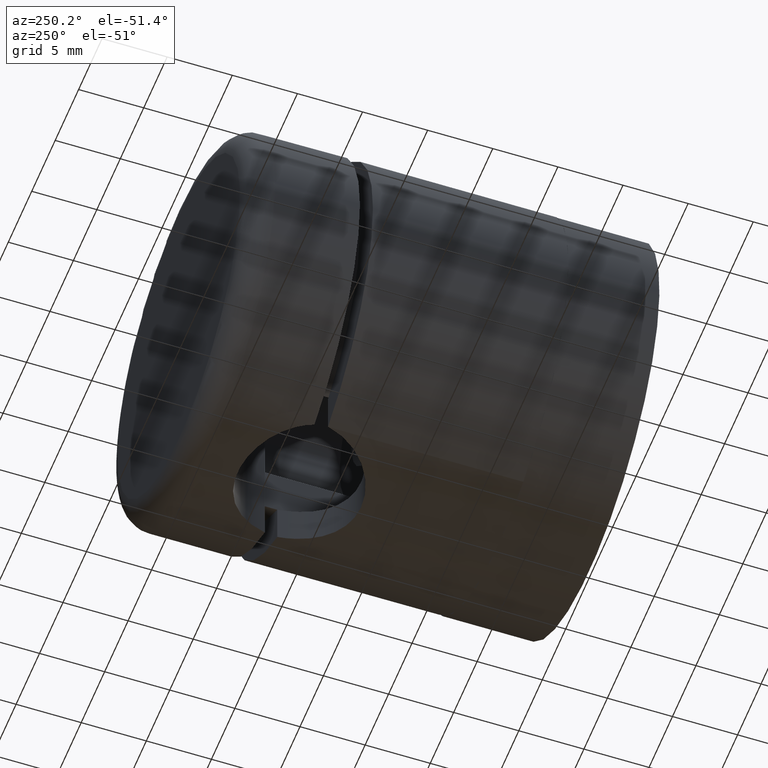
[diagram: clean part render]
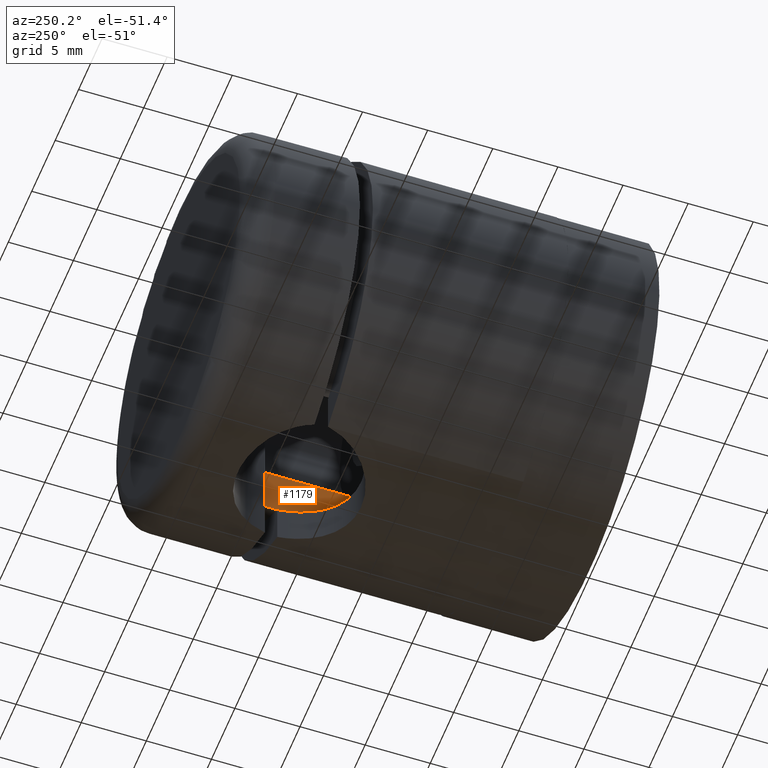
[diagram: same view with one face highlighted and labeled with its STEP entity id]
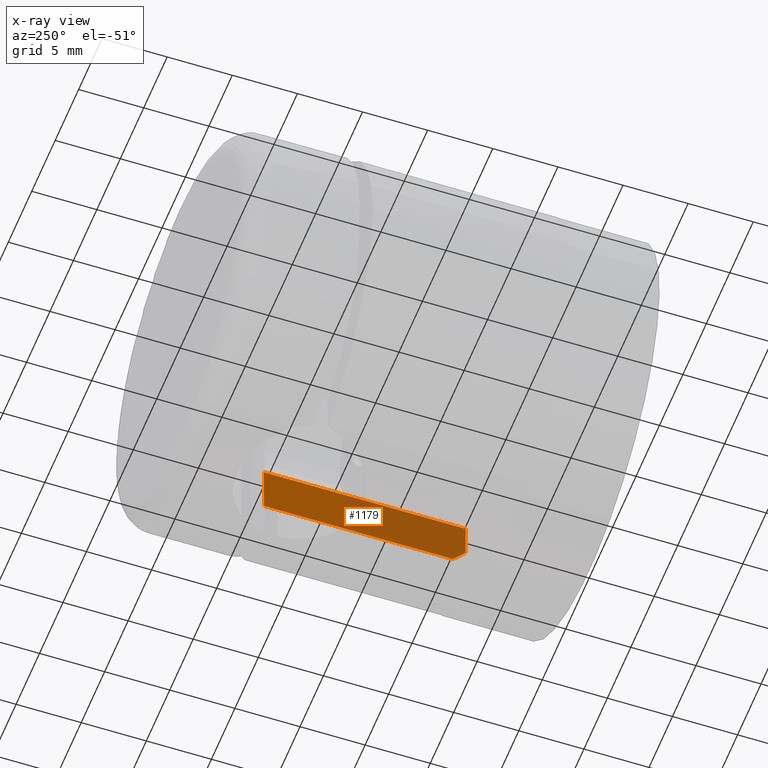
[diagram: x-ray of the same camera — body ghosted, the highlighted face saturated]
A machine part, auxiliary view. The second image highlights one B-rep face of the part: STEP entity #1179.
The next image is the same camera in x-ray: the body ghosted, the highlighted face saturated — about 52% of this face is hidden behind the body in this view.
In plain terms, the highlighted planar face has unit normal (1, 0, 0).
Its self-contained STEP definition (entity closure, byte-faithful):
#682 = CARTESIAN_POINT ( 'NONE',  ( 5.499999999999996400, 10.00000000000000200, -30.00000000000000400 ) ) ;
#982 = EDGE_CURVE ( 'NONE', #6676, #9332, #3696, .T. ) ;
#1179 = ADVANCED_FACE ( 'NONE', ( #15706 ), #5468, .F. ) ;
#1340 = EDGE_LOOP ( 'NONE', ( #8142, #9713, #11928, #14856, #15679 ) ) ;
#1542 = CARTESIAN_POINT ( 'NONE',  ( 5.500000000000000900, 24.50000000000000700, 10.72159036710506000 ) ) ;
#2350 = VERTEX_POINT ( 'NONE', #5229 ) ;
#2673 = VECTOR ( 'NONE', #12766, 1000.000000000000000 ) ;
#2738 = DIRECTION ( 'NONE',  ( 1.000000000000000000, 0.0000000000000000000, -1.156482317317871500E-016 ) ) ;
#2825 = CARTESIAN_POINT ( 'NONE',  ( 5.500000000000000900, 10.00000000000000200, 6.805328794408102200 ) ) ;
#2937 = AXIS2_PLACEMENT_3D ( 'NONE', #5366, #2738, #14667 ) ;
#3696 = LINE ( 'NONE', #10559, #9297 ) ;
#4410 = VERTEX_POINT ( 'NONE', #16306 ) ;
#4969 = CARTESIAN_POINT ( 'NONE',  ( 5.500000000000000900, 25.50000000000000400, 10.72159036710506000 ) ) ;
#5229 = CARTESIAN_POINT ( 'NONE',  ( 5.500000000000000900, 10.00000000000000000, 10.72159036710506000 ) ) ;
#5366 = CARTESIAN_POINT ( 'NONE',  ( 5.499999999999996400, -51.00000000000000000, -30.00000000000000400 ) ) ;
#5383 = EDGE_CURVE ( 'NONE', #4410, #6676, #9070, .T. ) ;
#5468 = PLANE ( 'NONE',  #2937 ) ;
#6173 = LINE ( 'NONE', #4969, #13659 ) ;
#6676 = VERTEX_POINT ( 'NONE', #9909 ) ;
#6688 = CARTESIAN_POINT ( 'NONE',  ( 5.500000000000000900, 24.50000000000000700, 10.72159036710506000 ) ) ;
#6704 = DIRECTION ( 'NONE',  ( -1.156482317317871500E-016, 0.0000000000000000000, -1.000000000000000000 ) ) ;
#6907 = CARTESIAN_POINT ( 'NONE',  ( 5.500000000000000900, 24.83561648060673800, 10.34439086098336700 ) ) ;
#7045 = B_SPLINE_CURVE_WITH_KNOTS ( 'NONE', 3,
 ( #1542, #6907, #10880, #11051 ),
 .UNSPECIFIED., .F., .F.,
 ( 4, 4 ),
 ( 0.0000000000000000000, 0.001514654363115871800 ),
 .UNSPECIFIED. ) ;
#7059 = EDGE_CURVE ( 'NONE', #10201, #4410, #7045, .T. ) ;
#8142 = ORIENTED_EDGE ( 'NONE', *, *, #5383, .T. ) ;
#9070 = LINE ( 'NONE', #10802, #17164 ) ;
#9297 = VECTOR ( 'NONE', #11939, 1000.000000000000000 ) ;
#9332 = VERTEX_POINT ( 'NONE', #2825 ) ;
#9515 = LINE ( 'NONE', #682, #2673 ) ;
#9713 = ORIENTED_EDGE ( 'NONE', *, *, #982, .T. ) ;
#9909 = CARTESIAN_POINT ( 'NONE',  ( 5.500000000000000900, 25.50000000000000400, 6.805328794408102200 ) ) ;
#10201 = VERTEX_POINT ( 'NONE', #6688 ) ;
#10559 = CARTESIAN_POINT ( 'NONE',  ( 5.500000000000000900, -14.74873734152917100, 6.805328794408102200 ) ) ;
#10802 = CARTESIAN_POINT ( 'NONE',  ( 5.500000000000000000, 25.50000000000000400, -6.360652745248293000E-016 ) ) ;
#10880 = CARTESIAN_POINT ( 'NONE',  ( 5.500000000000000900, 25.16918428849094600, 9.965390512884420500 ) ) ;
#11051 = CARTESIAN_POINT ( 'NONE',  ( 5.500000000000000900, 25.50000000000000400, 9.583970993278311900 ) ) ;
#11112 = EDGE_CURVE ( 'NONE', #10201, #2350, #6173, .T. ) ;
#11928 = ORIENTED_EDGE ( 'NONE', *, *, #13353, .T. ) ;
#11939 = DIRECTION ( 'NONE',  ( 0.0000000000000000000, -1.000000000000000000, 0.0000000000000000000 ) ) ;
#12766 = DIRECTION ( 'NONE',  ( 1.156482317317871500E-016, -0.0000000000000000000, 1.000000000000000000 ) ) ;
#13353 = EDGE_CURVE ( 'NONE', #9332, #2350, #9515, .T. ) ;
#13659 = VECTOR ( 'NONE', #14264, 1000.000000000000000 ) ;
#14264 = DIRECTION ( 'NONE',  ( -0.0000000000000000000, -1.000000000000000000, -0.0000000000000000000 ) ) ;
#14667 = DIRECTION ( 'NONE',  ( -1.156482317317871500E-016, 0.0000000000000000000, -1.000000000000000000 ) ) ;
#14856 = ORIENTED_EDGE ( 'NONE', *, *, #11112, .F. ) ;
#15679 = ORIENTED_EDGE ( 'NONE', *, *, #7059, .T. ) ;
#15706 = FACE_OUTER_BOUND ( 'NONE', #1340, .T. ) ;
#16306 = CARTESIAN_POINT ( 'NONE',  ( 5.500000000000000900, 25.50000000000000400, 9.583970993278311900 ) ) ;
#17164 = VECTOR ( 'NONE', #6704, 1000.000000000000000 ) ;